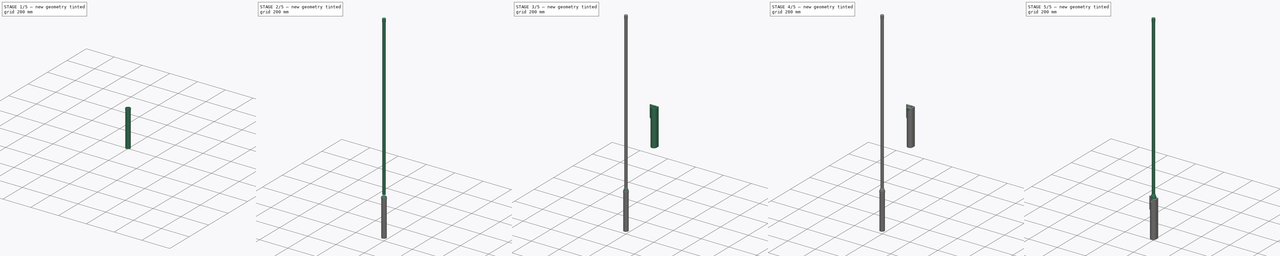
[diagram: build sequence overview — one tinted view per stage of 5, left to right]
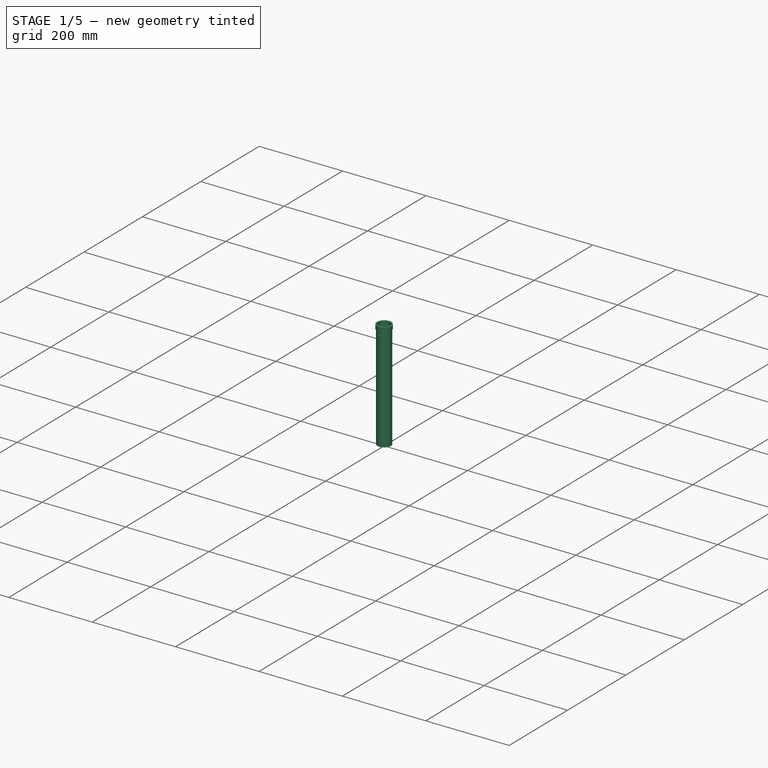
[diagram: stage 1 of 5 — iso view after this stage's code; geometry added in this stage tinted green]
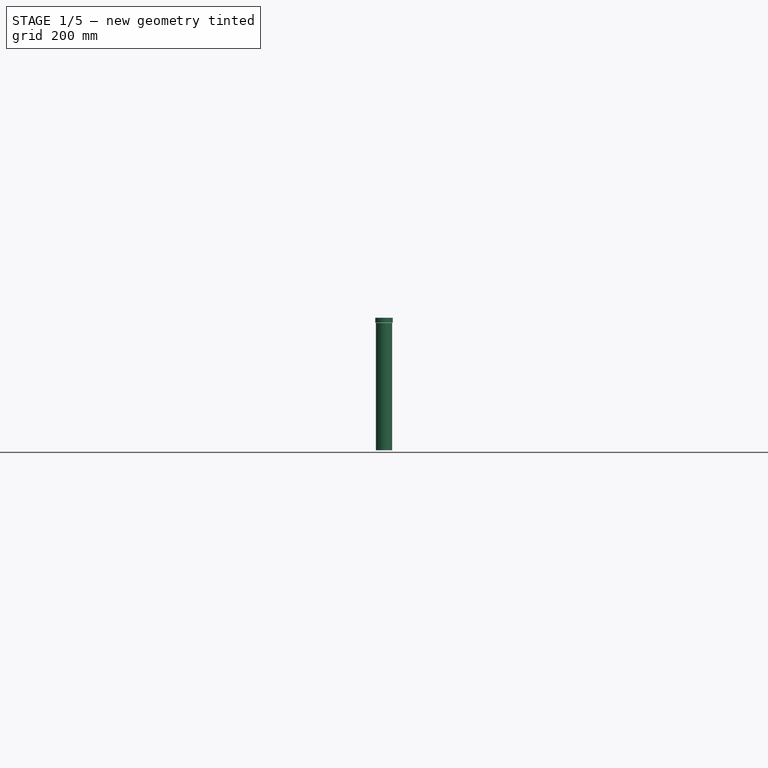
[diagram: stage 1 of 5 — front view after this stage's code; geometry added in this stage tinted green]
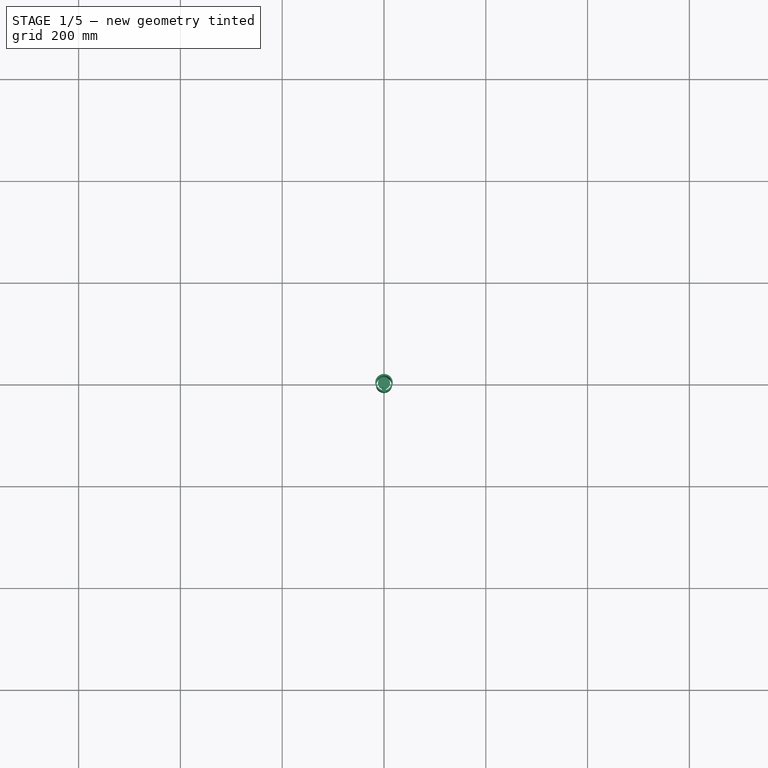
[diagram: stage 1 of 5 — top view after this stage's code; geometry added in this stage tinted green]
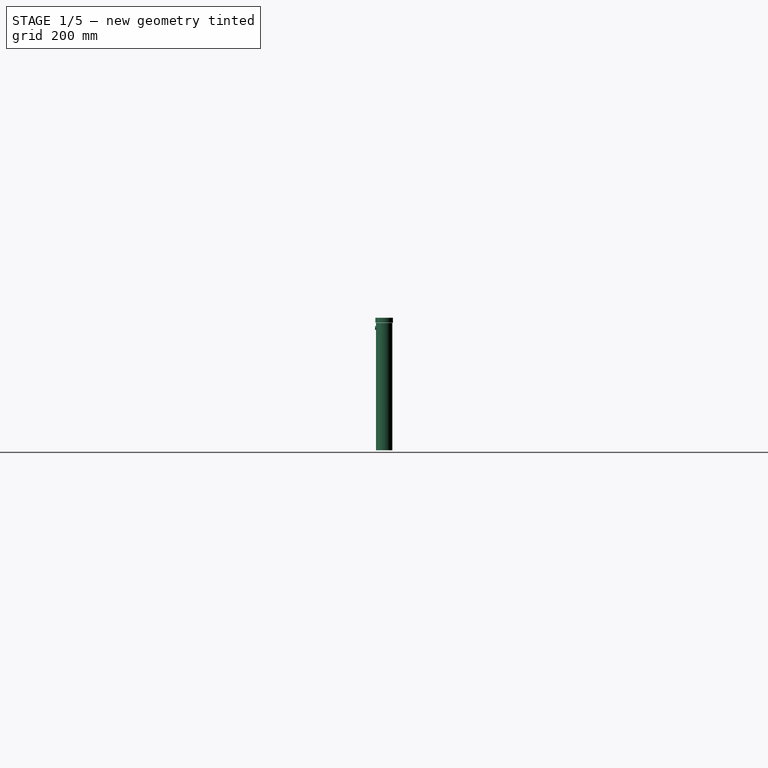
[diagram: stage 1 of 5 — right view after this stage's code; geometry added in this stage tinted green]
FCSTD DOCUMENT  (FreeCAD 1.0R39109 (Git))
Label: antennaHolderV3
License: All rights reserved
LicenseURL: http://en.wikipedia.org/wiki/All_rights_reserved
objects: Part::Cylinder×8, Part::Cut×5, Sketcher::SketchObject×5, Part::Extrusion×5, Part::Fillet×3, Part::Cone×2, Part::FeaturePython×2, Part::Feature×1, Part::MultiFuse×1, App::Part×1, Part::Compound×1
note: 38 computed .brp shape members not serialized (recipe doc carries the construction recipe); baked Part::Feature solids carry a one-line shape summary decoded from their .brp

FEATURE [Part::Cylinder] Cylinder213  label="base013"
  Angle = 360
  AttacherType = Attacher::AttachEngine3D
  FirstAngle = 0
  Height = 1.5
  Placement = pos=(0,0,-53) rot=(0,0,1;0rad)
  Radius = 9
  SecondAngle = 0
FEATURE [Part::Cylinder] Cylinder214
  Angle = 360
  AttacherType = Attacher::AttachEngine3D
  FirstAngle = 0
  Height = 10.3
  Placement = pos=(0,0,-84.8) rot=(0,0,1;0rad)
  Radius = 12
  SecondAngle = 0
FEATURE [Part::Cylinder] Cylinder215
  Angle = 360
  AttacherType = Attacher::AttachEngine3D
  FirstAngle = 0
  Height = 10
  Placement = pos=(0,-8,-36.5) rot=(1,0,0;1.5708rad)
  Radius = 3.75
  SecondAngle = 0
FEATURE [Part::FeaturePython] Tube006  # WARN: FeaturePython — macro-defined, semantics opaque (R4)
  AttacherType = Attacher::AttachEngine3D
  Height = 250
  InnerRadius = 14.7
  OuterRadius = 16
  Placement = pos=(0,0,-277) rot=(0,0,1;0rad)
FEATURE [Part::FeaturePython] Tube007  label="BaseOuter001"  # WARN: FeaturePython — macro-defined, semantics opaque (R4)
  AttacherType = Attacher::AttachEngine3D
  Height = 10
  InnerRadius = 14.5
  OuterRadius = 17.25
  Placement = pos=(0,0,-26.5) rot=(0,0,1;0rad)
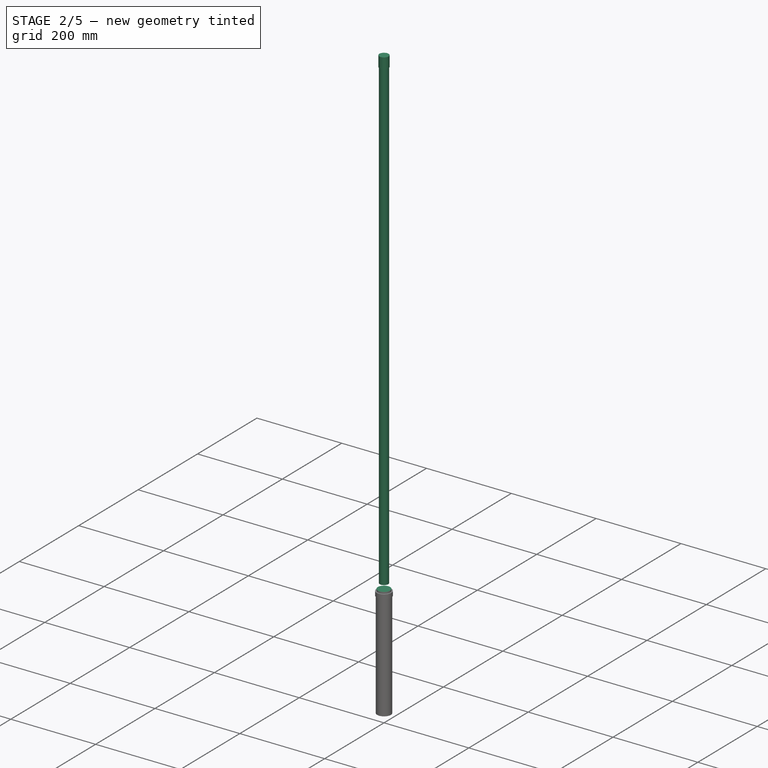
[diagram: stage 2 of 5 — iso view after this stage's code; geometry added in this stage tinted green]
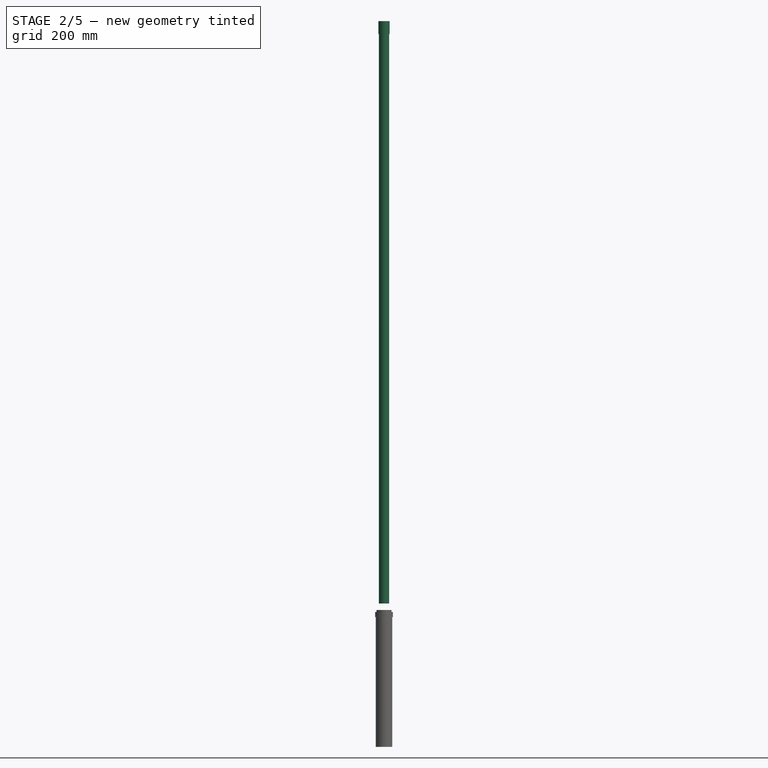
[diagram: stage 2 of 5 — front view after this stage's code; geometry added in this stage tinted green]
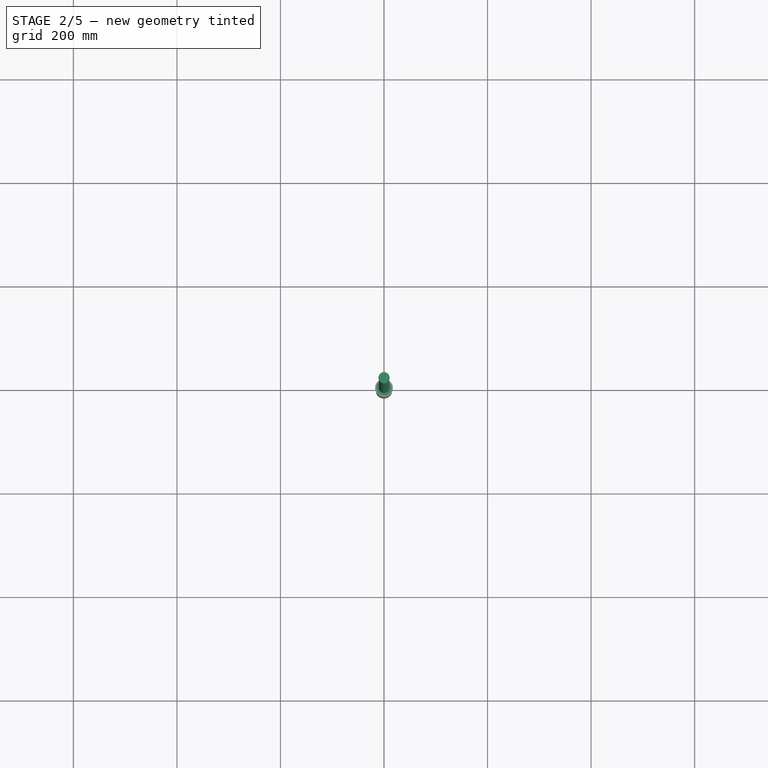
[diagram: stage 2 of 5 — top view after this stage's code; geometry added in this stage tinted green]
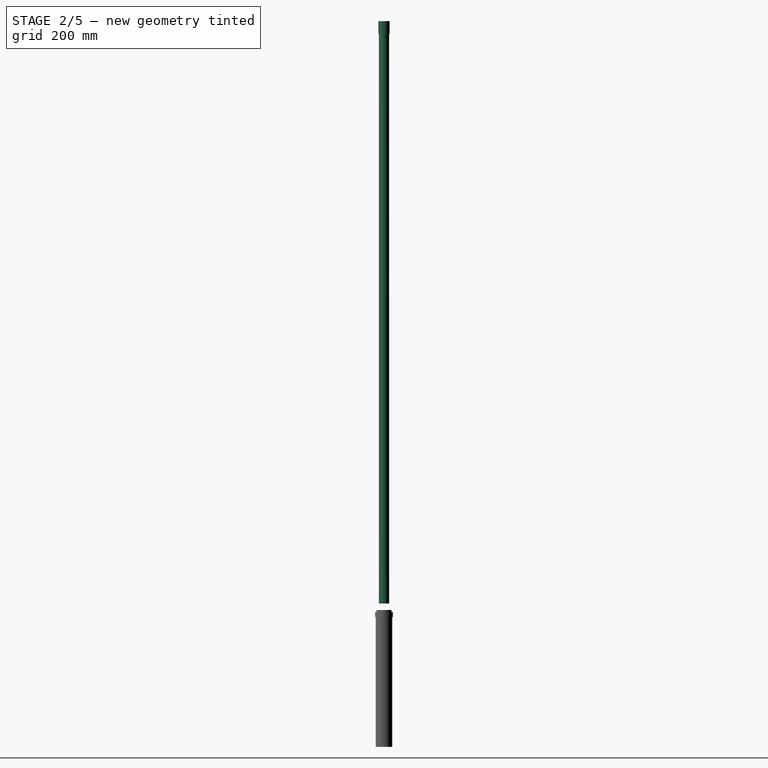
[diagram: stage 2 of 5 — right view after this stage's code; geometry added in this stage tinted green]
FEATURE [Part::Cylinder] Cylinder209  label="antenna001"
  Angle = 360
  AttacherType = Attacher::AttachEngine3D
  FirstAngle = 0
  Height = 1100
  Radius = 9.935
  SecondAngle = 0
FEATURE [Part::Cylinder] Cylinder210  label="antennaTip001"
  Angle = 360
  AttacherType = Attacher::AttachEngine3D
  FirstAngle = 0
  Height = 25
  Placement = pos=(0,0,1100) rot=(0,0,1;0rad)
  Radius = 10.785
  SecondAngle = 0
FEATURE [Part::Cylinder] Cylinder211  label="Base004"
  Angle = 360
  AttacherType = Attacher::AttachEngine3D
  FirstAngle = 0
  Height = 29
  Placement = pos=(0,0,-41.5) rot=(0,0,1;0rad)
  Radius = 14.5
  SecondAngle = 0
FEATURE [Part::Cylinder] Cylinder212  label="base012"
  Angle = 360
  AttacherType = Attacher::AttachEngine3D
  FirstAngle = 0
  Height = 10
  Placement = pos=(0,0,-51.5) rot=(0,0,1;0rad)
  Radius = 10
  SecondAngle = 0
FEATURE [Part::Cut] Cut152  label="base011"
  Base = -> Cylinder211
  Refine = true
  Tool = -> Cylinder215
FEATURE [Part::Feature] Part__Feature340  label="SOLID004"
  Placement = pos=(0,0,0) rot=(1,0,0;1.5708rad)
  shape: bbox 24 x 24 x 23 mm, 53 faces (baked)
FEATURE [Part::Cut] Cut151  label="LoraPlug001"
  Base = -> Part__Feature340
  Placement = pos=(0,0,32) rot=(0,0,1;0rad)
  Refine = true
  Tool = -> Cylinder214
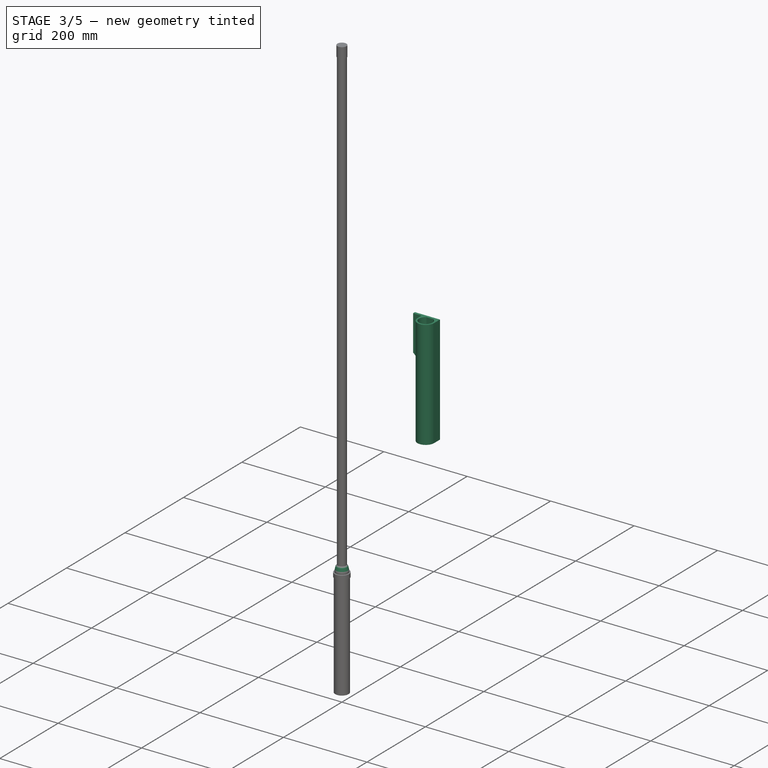
[diagram: stage 3 of 5 — iso view after this stage's code; geometry added in this stage tinted green]
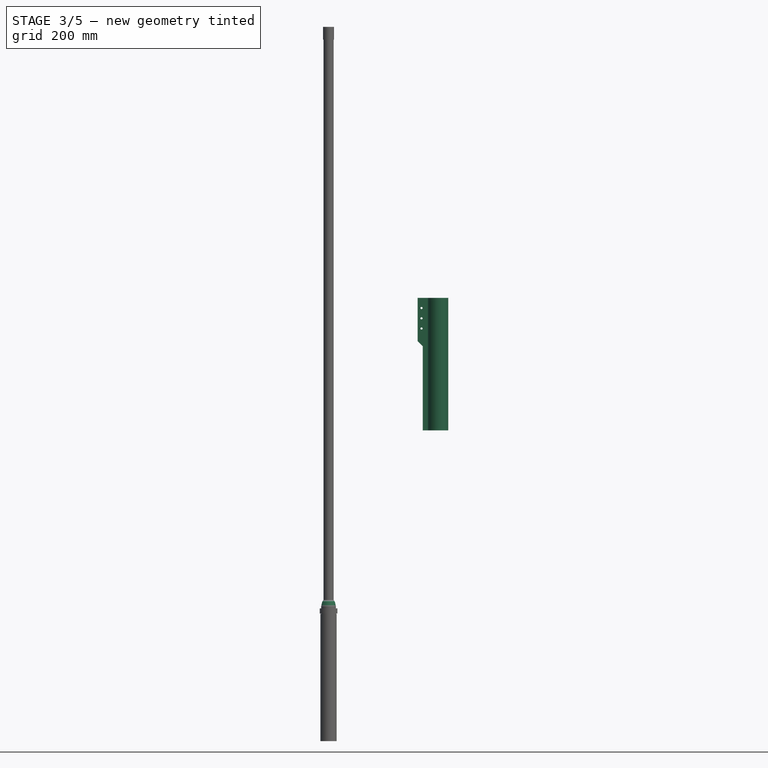
[diagram: stage 3 of 5 — front view after this stage's code; geometry added in this stage tinted green]
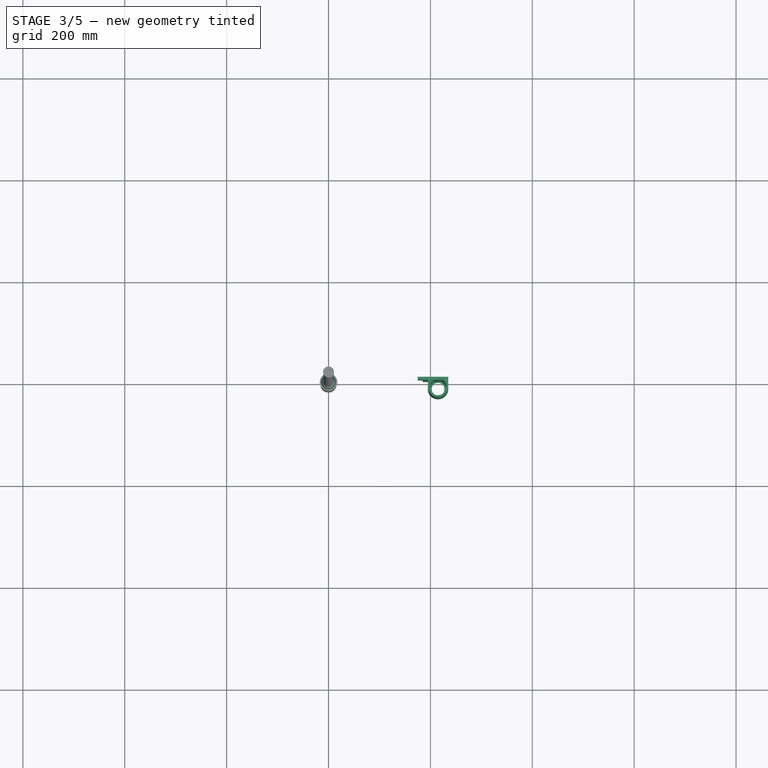
[diagram: stage 3 of 5 — top view after this stage's code; geometry added in this stage tinted green]
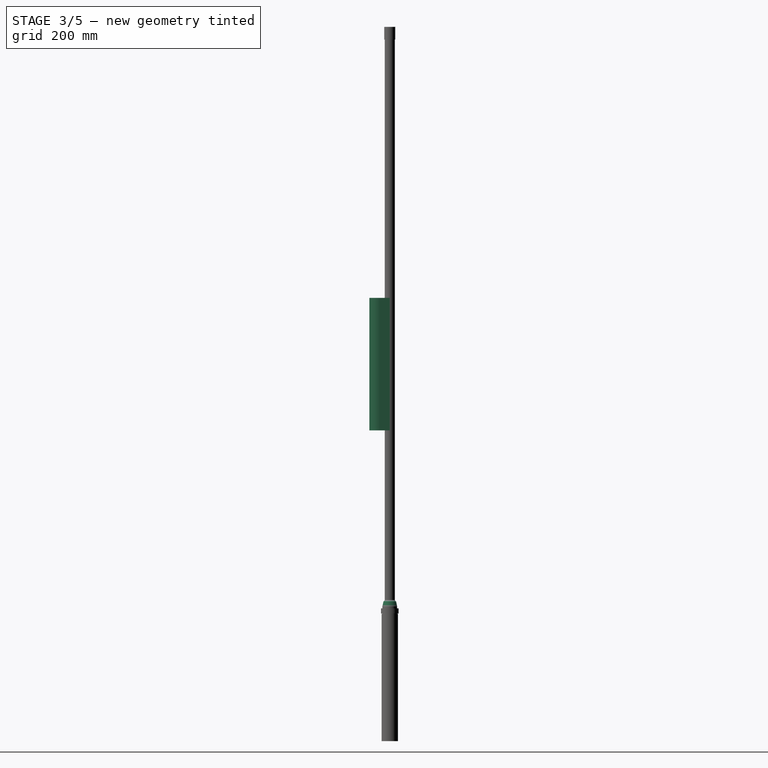
[diagram: stage 3 of 5 — right view after this stage's code; geometry added in this stage tinted green]
FEATURE [Part::Cone] Cone002  label="base009"
  Angle = 360
  AttacherType = Attacher::AttachEngine3D
  Height = 9
  Placement = pos=(0,0,-12.5) rot=(0,0,1;0rad)
  Radius1 = 14.5
  Radius2 = 12.5
FEATURE [Part::Cone] Cone003  label="base010"
  Angle = 360
  AttacherType = Attacher::AttachEngine3D
  Height = 3.5
  Placement = pos=(0,0,-3.5) rot=(0,0,1;0rad)
  Radius1 = 12.5
  Radius2 = 9.94
FEATURE [Sketcher::SketchObject] Sketch401
  ArcFitTolerance = 1e-06
  FullyConstrained = true
  MakeInternals = false
  Placement = pos=(0,0,0) rot=(1,0,0;1.5708rad)
  sketch-geometry (9):
    g0: LineSegment StartX=175 StartY=593 StartZ=0 EndX=235 EndY=593 EndZ=0
    g1: LineSegment StartX=235 StartY=593 StartZ=0 EndX=235 EndY=333 EndZ=0
    g2: LineSegment StartX=235 StartY=333 StartZ=0 EndX=185 EndY=333 EndZ=0
    g3: LineSegment StartX=185 StartY=333 StartZ=0 EndX=185 EndY=498 EndZ=0
    g4: LineSegment StartX=185 StartY=498 StartZ=0 EndX=175 EndY=508 EndZ=0
    g5: LineSegment StartX=175 StartY=508 StartZ=0 EndX=175 EndY=593 EndZ=0
    g6: Circle CenterX=182.5 CenterY=573 CenterZ=0 NormalX=0 NormalY=0 NormalZ=1 AngleXU=0 Radius=2.125
    g7: Circle CenterX=182.5 CenterY=553 CenterZ=0 NormalX=0 NormalY=0 NormalZ=1 AngleXU=0 Radius=2.125
    g8: Circle CenterX=182.5 CenterY=533 CenterZ=0 NormalX=0 NormalY=0 NormalZ=1 AngleXU=0 Radius=2.125
  constraints (27):
    c: Horizontal(g0)
    c: Coincident(g1,g0)
    c: Vertical(g1)
    c: Coincident(g2,g1)
    c: Horizontal(g2)
    c: Coincident(g3,g2)
    c: Vertical(g3)
    c: Coincident(g5,g4)
    c: Vertical(g5)
    c: Coincident(g3,g4)
    c: Coincident(g0,g5)
    c: DistanceX(g2,g2) = 50
    c: DistanceX(g1) = 235
    c: DistanceY(g0) = 593
    c: DistanceX(g0,g0) = 60
    c: DistanceY(g5,g5) = 85
    c: Angle(g4) = 2.35619
    c: DistanceY(g1,g1) = 260
    c: Equal(g6,g7)
    c: Equal(g6,g8)
    c: Diameter(g6) = 4.25
    c: Vertical(g8,g7)
    c: Vertical(g7,g6)
    c: DistanceY(g6,g0) = 20
    c: DistanceY(g7,g6) = 20
    c: DistanceY(g8,g7) = 20
    c: DistanceX(g0,g6) = 7.5
FEATURE [Part::Extrusion] Extrude172
  Base = -> Sketch401
  Dir = (0,-1,2e-16)
  DirMode = 2
  FaceMakerClass = Part::FaceMakerBullseye
  FaceMakerMode = 3
  LengthFwd = 6
  LengthRev = 0
  Solid = true
  Symmetric = false
FEATURE [Sketcher::SketchObject] Sketch402
  ArcFitTolerance = 1e-06
  FullyConstrained = true
  MakeInternals = false
  Placement = pos=(0,0,333) rot=(0,0,1;0rad)
  sketch-geometry (5):
    g0: LineSegment StartX=235 StartY=0 StartZ=0 EndX=235 EndY=-20 EndZ=0
    g1: LineSegment StartX=195 StartY=0 StartZ=0 EndX=195 EndY=-20 EndZ=0
    g2: ArcOfCircle CenterX=215 CenterY=-20 CenterZ=0 NormalX=0 NormalY=0 NormalZ=1 AngleXU=0 Radius=20 StartAngle=3.14159 EndAngle=6.28319
    g3: Circle CenterX=215 CenterY=-20 CenterZ=0 NormalX=0 NormalY=0 NormalZ=1 AngleXU=0 Radius=16.25
    g4: LineSegment StartX=195 StartY=0 StartZ=0 EndX=235 EndY=0 EndZ=0
  constraints (15):
    c: Vertical(g0)
    c: Vertical(g1)
    c: Coincident(g2,g1)
    c: Coincident(g2,g0)
    c: DistanceY(g1) = 0
    c: Coincident(g3,g2)
    c: Diameter(g3) = 32.5
    c: Horizontal(g2,g0)
    c: Horizontal(g0,g1)
    c: DistanceX(g2) = 215
    c: DistanceY(g2) = -20
    c: Horizontal(g0,g1)
    c: DistanceX(g0) = 235
    c: Coincident(g4,g1)
    c: Coincident(g4,g0)
FEATURE [Part::Extrusion] Extrude173
  Base = -> Sketch402
  Dir = (0,0,1)
  DirMode = 2
  FaceMakerClass = Part::FaceMakerBullseye
  FaceMakerMode = 3
  LengthFwd = 260
  LengthRev = 0
  Solid = true
  Symmetric = false
FEATURE [Sketcher::SketchObject] Sketch403
  ArcFitTolerance = 1e-06
  FullyConstrained = true
  MakeInternals = false
  Placement = pos=(0,0,333) rot=(0,0,1;0rad)
  sketch-geometry (5):
    g0: LineSegment StartX=235 StartY=0 StartZ=0 EndX=235 EndY=-20 EndZ=0
    g1: LineSegment StartX=195 StartY=0 StartZ=0 EndX=195 EndY=-20 EndZ=0
    g2: ArcOfCircle CenterX=215 CenterY=-20 CenterZ=0 NormalX=0 NormalY=0 NormalZ=1 AngleXU=0 Radius=20 StartAngle=3.14159 EndAngle=6.28319
    g3: Circle CenterX=215 CenterY=-20 CenterZ=0 NormalX=0 NormalY=0 NormalZ=1 AngleXU=0 Radius=12.5
    g4: LineSegment StartX=195 StartY=0 StartZ=0 EndX=235 EndY=0 EndZ=0
  constraints (15):
    c: Vertical(g0)
    c: Vertical(g1)
    c: Coincident(g2,g1)
    c: Coincident(g2,g0)
    c: DistanceY(g1) = 0
    c: Coincident(g3,g2)
    c: Diameter(g3) = 25
    c: Horizontal(g2,g0)
    c: Horizontal(g0,g1)
    c: DistanceX(g2) = 215
    c: DistanceY(g2) = -20
    c: Horizontal(g0,g1)
    c: DistanceX(g0) = 235
    c: Coincident(g4,g1)
    c: Coincident(g4,g0)
FEATURE [Part::Extrusion] Extrude174
  Base = -> Sketch403
  Dir = (0,0,1)
  DirMode = 2
  FaceMakerClass = Part::FaceMakerBullseye
  FaceMakerMode = 3
  LengthFwd = 10
  LengthRev = 0
  Solid = true
  Symmetric = false
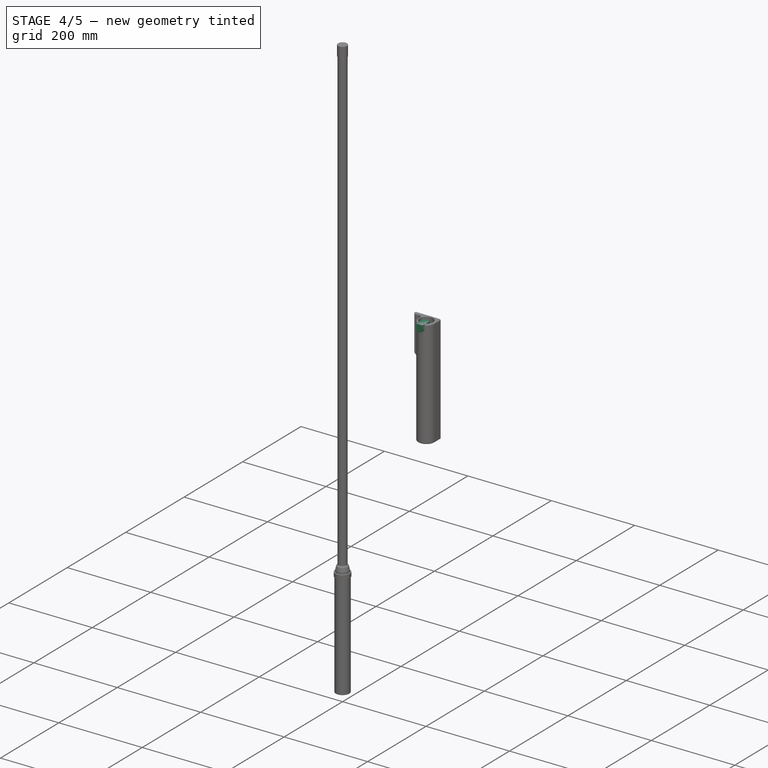
[diagram: stage 4 of 5 — iso view after this stage's code; geometry added in this stage tinted green]
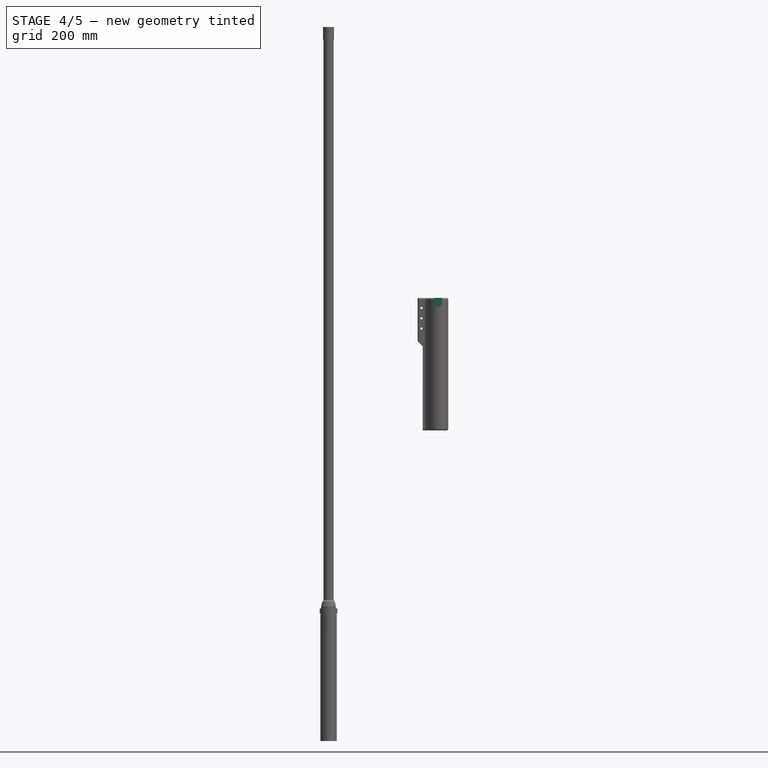
[diagram: stage 4 of 5 — front view after this stage's code; geometry added in this stage tinted green]
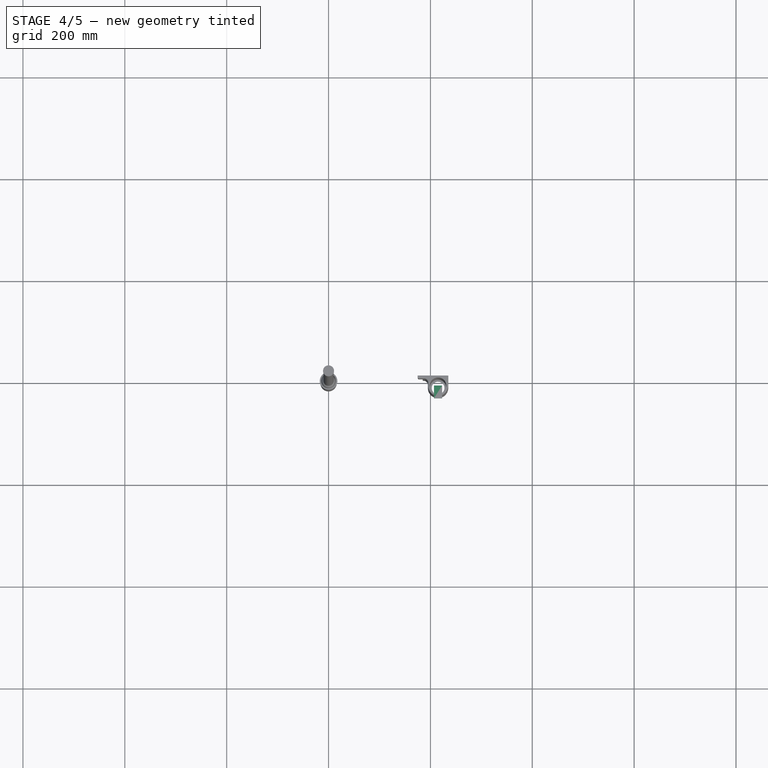
[diagram: stage 4 of 5 — top view after this stage's code; geometry added in this stage tinted green]
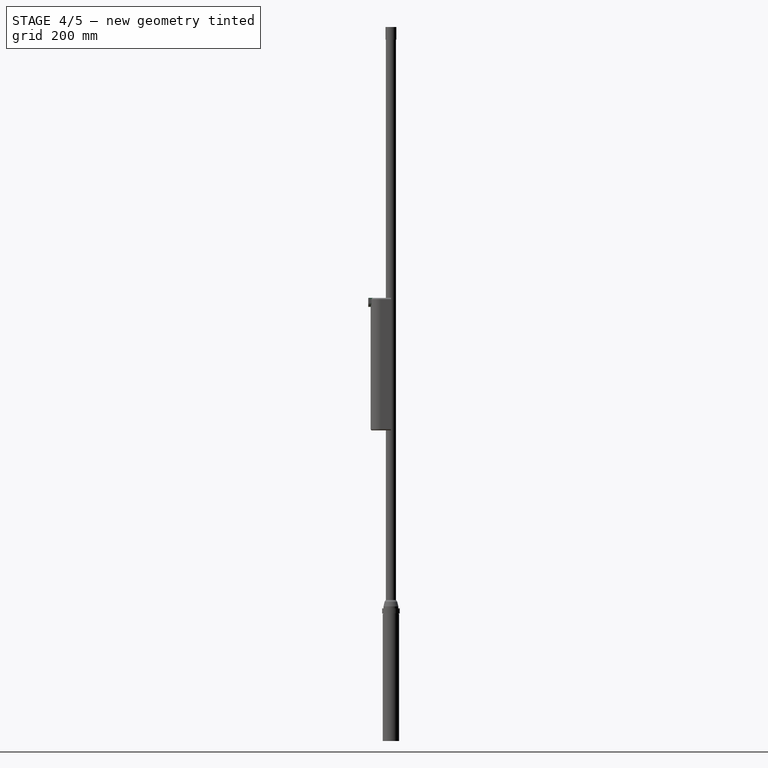
[diagram: stage 4 of 5 — right view after this stage's code; geometry added in this stage tinted green]
FEATURE [Part::MultiFuse] Fusion183  label="antennaHolder001"
  Shapes = -> [Extrude172,Extrude173,Extrude174]
FEATURE [Part::Fillet] Fillet264
  Base = -> Fusion183
  EdgeLinks = -> Fusion183 [Edge24]
  Edges = 1 edges r=8: [Edge24]
FEATURE [Sketcher::SketchObject] Sketch404
  ArcFitTolerance = 1e-06
  FullyConstrained = true
  MakeInternals = false
  Placement = pos=(0,0,343) rot=(0,0,1;0rad)
  sketch-geometry (1):
    g0: Circle CenterX=215 CenterY=-20 CenterZ=0 NormalX=0 NormalY=0 NormalZ=1 AngleXU=0 Radius=16.25
  constraints (3):
    c: Diameter(g0) = 32.5
    c: DistanceX(g0) = 215
    c: DistanceY(g0) = -20
FEATURE [Part::Extrusion] Extrude175
  Base = -> Sketch404
  Dir = (0,0,1)
  DirMode = 2
  FaceMakerClass = Part::FaceMakerBullseye
  FaceMakerMode = 3
  LengthFwd = 260
  LengthRev = 0
  Solid = true
  Symmetric = false
FEATURE [Part::Cut] Cut153  label="antennaHolder002"
  Base = -> Fillet264
  Tool = -> Extrude175
FEATURE [Part::Fillet] Fillet265  label="antennaHolder003"
  Base = -> Cut153
  EdgeLinks = -> Cut153 [Edge8,Edge10,Edge11,Edge17,Edge55,Edge65]
  Edges = 6 edges: [Edge8 r=1,Edge10 r=1,Edge11 r=3,Edge17 r=3,Edge55 r=1,Edge65 r=3]
FEATURE [Sketcher::SketchObject] Sketch405
  ArcFitTolerance = 1e-06
  FullyConstrained = true
  MakeInternals = false
  Placement = pos=(0,-19.5,0) rot=(1,0,0;1.5708rad)
  sketch-geometry (4):
    g0: ArcOfCircle CenterX=215 CenterY=583.5 CenterZ=0 NormalX=0 NormalY=0 NormalZ=1 AngleXU=0 Radius=8 StartAngle=3.14159 EndAngle=6.28319
    g1: LineSegment StartX=207 StartY=583.5 StartZ=0 EndX=207 EndY=593 EndZ=0
    g2: LineSegment StartX=207 StartY=593 StartZ=0 EndX=223 EndY=593 EndZ=0
    g3: LineSegment StartX=223 StartY=593 StartZ=0 EndX=223 EndY=583.5 EndZ=0
  constraints (13):
    c: Coincident(g1,g0)
    c: Vertical(g1)
    c: Coincident(g2,g1)
    c: Horizontal(g2)
    c: Coincident(g3,g2)
    c: Coincident(g3,g0)
    c: Vertical(g3)
    c: Horizontal(g0,g0)
    c: Horizontal(g0,g0)
    c: DistanceX(g0) = 215
    c: DistanceY(g0) = 583.5
    c: Diameter(g0) = 16
    c: DistanceY(g1) = 593
FEATURE [Part::Extrusion] Extrude176
  Base = -> Sketch405
  Dir = (0,-1,2e-16)
  DirMode = 2
  FaceMakerClass = Part::FaceMakerBullseye
  FaceMakerMode = 3
  LengthFwd = 25
  LengthRev = 0
  Solid = true
  Symmetric = false
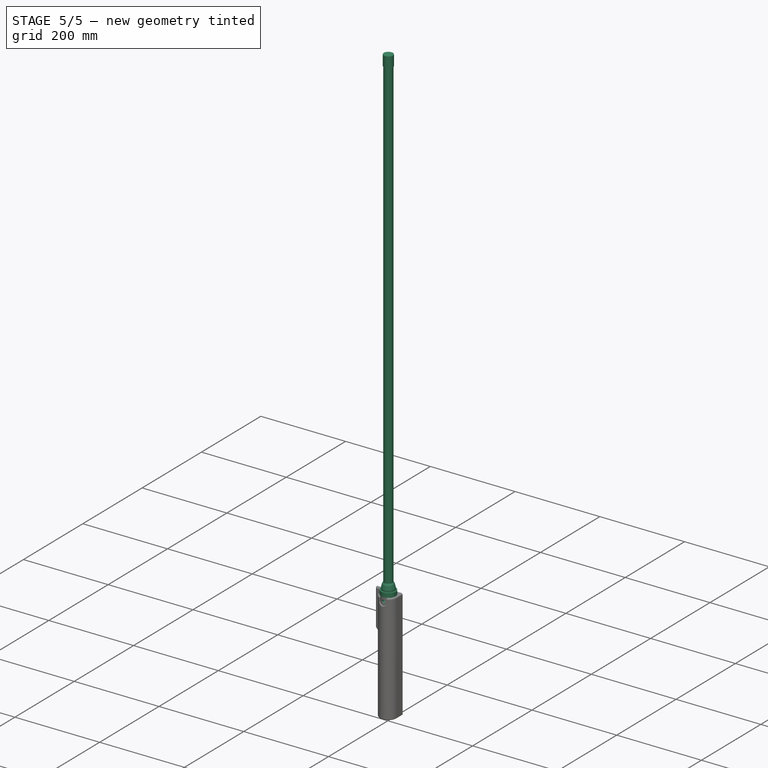
[diagram: stage 5 of 5 — iso view after this stage's code; geometry added in this stage tinted green]
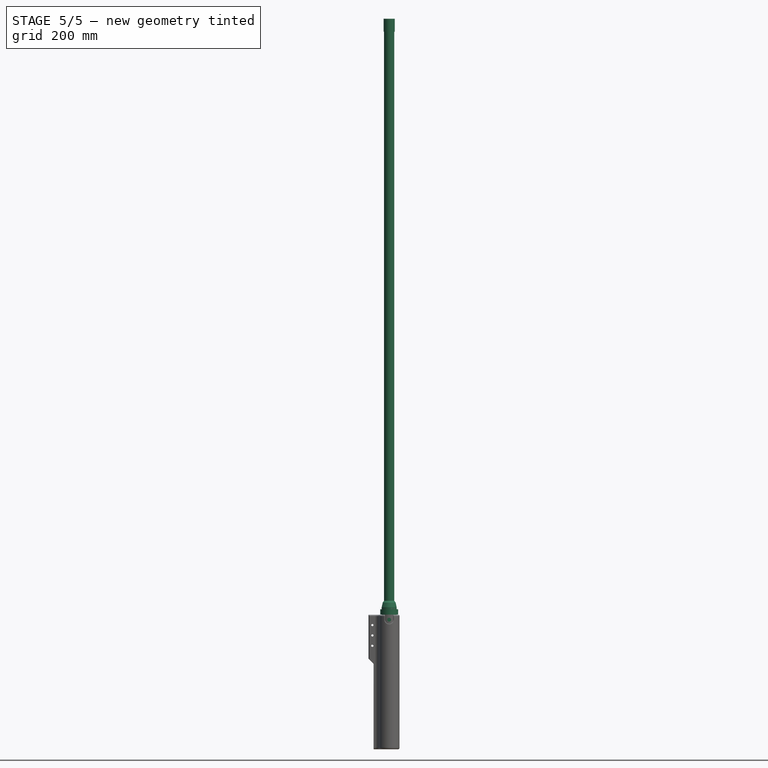
[diagram: stage 5 of 5 — front view after this stage's code; geometry added in this stage tinted green]
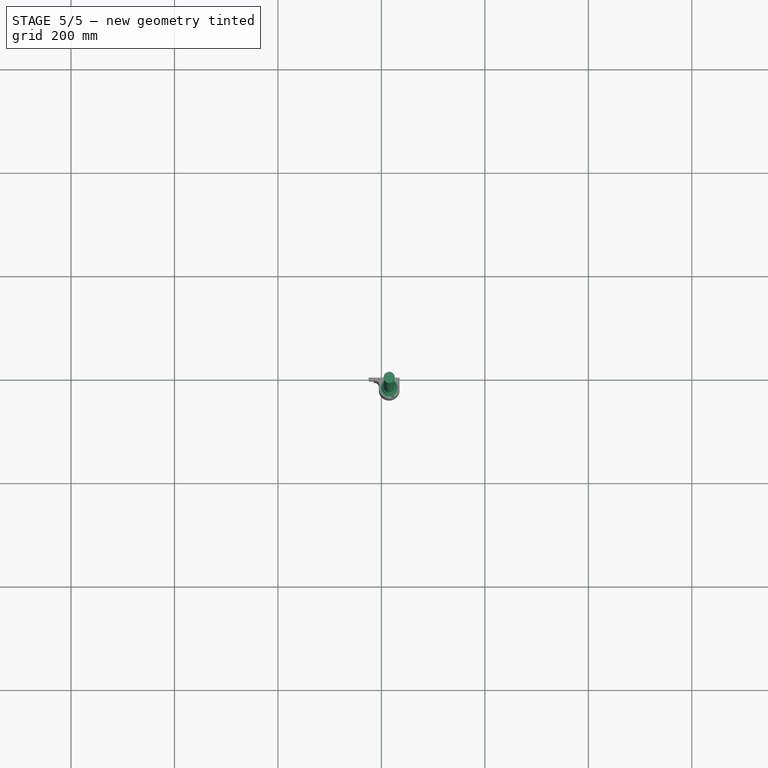
[diagram: stage 5 of 5 — top view after this stage's code; geometry added in this stage tinted green]
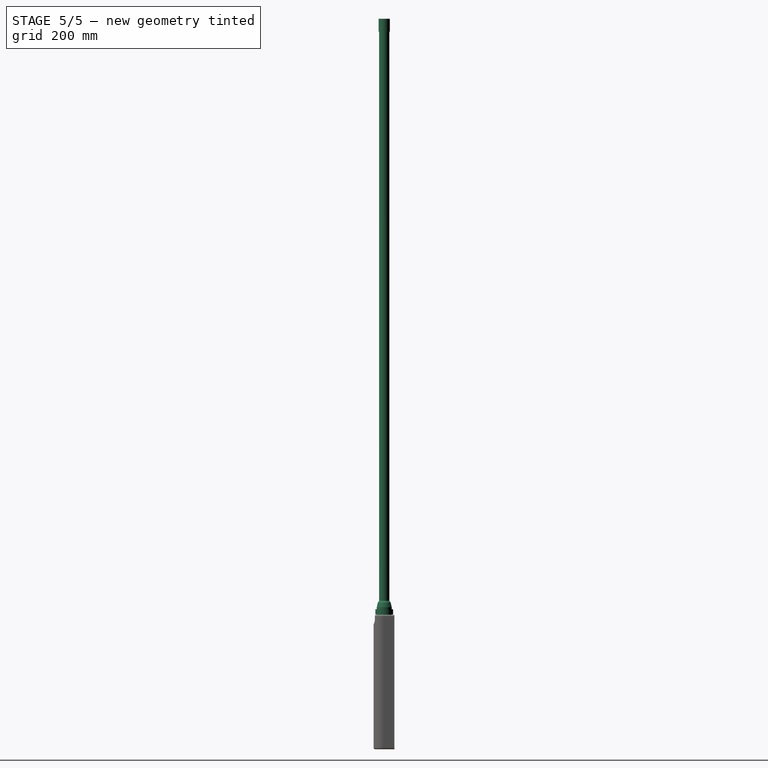
[diagram: stage 5 of 5 — right view after this stage's code; geometry added in this stage tinted green]
FEATURE [Part::Cylinder] Cylinder208
  Angle = 360
  AttacherType = Attacher::AttachEngine3D
  FirstAngle = 0
  Height = 10
  Placement = pos=(0,-8,-36.5) rot=(1,0,0;1.5708rad)
  Radius = 3.75
  SecondAngle = 0
FEATURE [Part::Cut] Cut154  label="antennaHolder004"
  Base = -> Fillet265
  Tool = -> Extrude176
FEATURE [Part::Fillet] Fillet266  label="antennaHolder005"
  Base = -> Cut154
  EdgeLinks = -> Cut154 [Edge40,Edge41,Edge91,Edge92,Edge93,Edge143]
  Edges = 6 edges r=1: [Edge40,Edge41,Edge91,Edge92,Edge93,Edge143]
FEATURE [Part::Cut] Cut150  label="metalHolder "
  Base = -> Tube006
  Placement = pos=(215,-20,620) rot=(0,0,1;0rad)
  Refine = true
  Tool = -> Cylinder208
FEATURE [App::Part] Part004  label="Antenna001"
  Group = -> [Cylinder209,Cylinder210,Cone002,Cone003,Cylinder212,Cylinder213,Cylinder214,Part__Feature340,Cut151,Cylinder211,Cylinder215,Cut152,Tube007]
  Origin = -> Origin008
  Placement = pos=(215,-19.5,620) rot=(0,0,1;0rad)
FEATURE [Part::Compound] Compound002  label="loraAntennaAndMounts"
  Links = -> [Fillet266,Part004,Cut150]
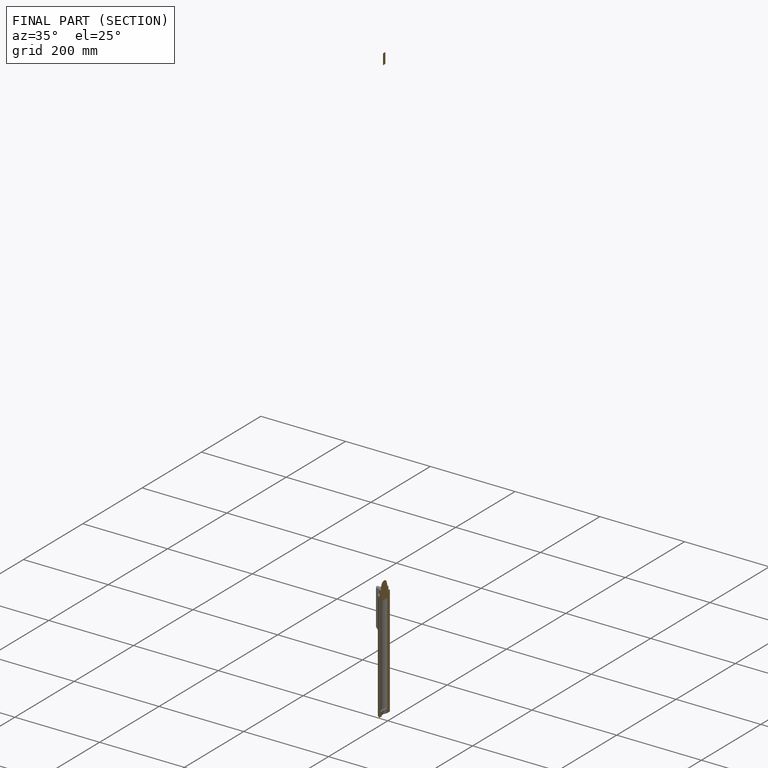
[diagram: finished part — half-section view (interior)]
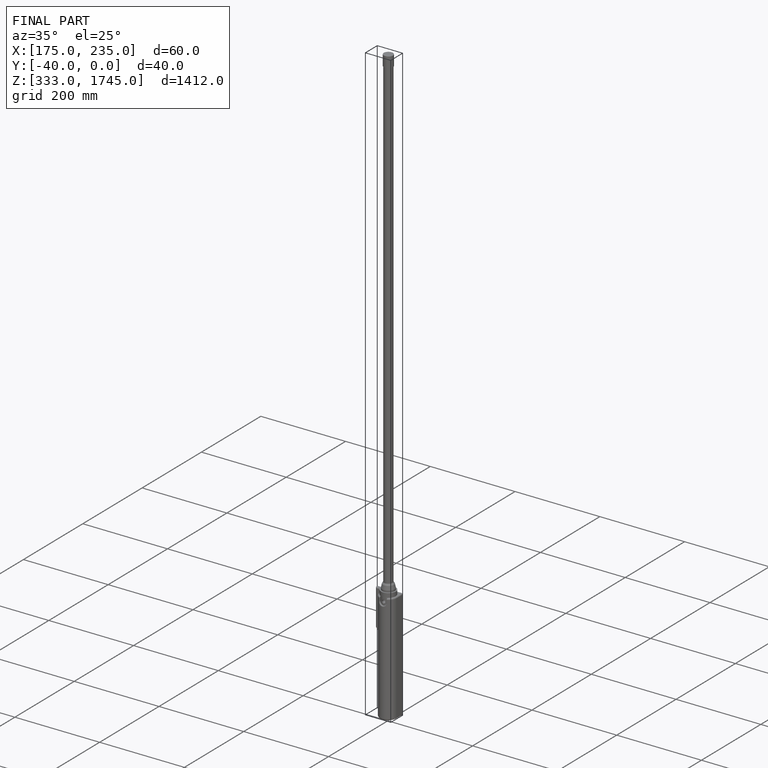
[diagram: finished part — iso view with bounding-box wireframe]
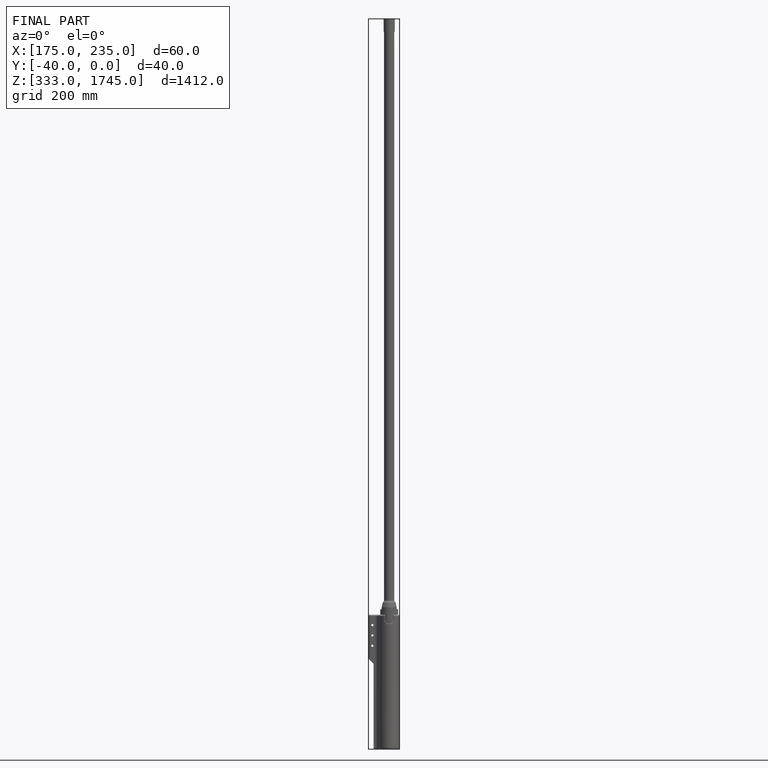
[diagram: finished part — front view with bounding-box wireframe]
